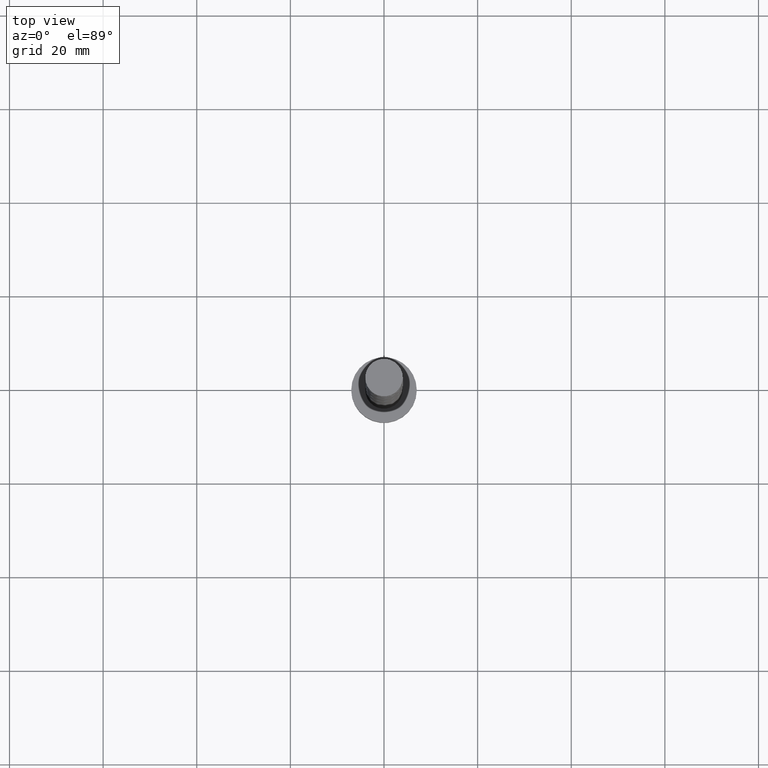
[diagram: clean part render]
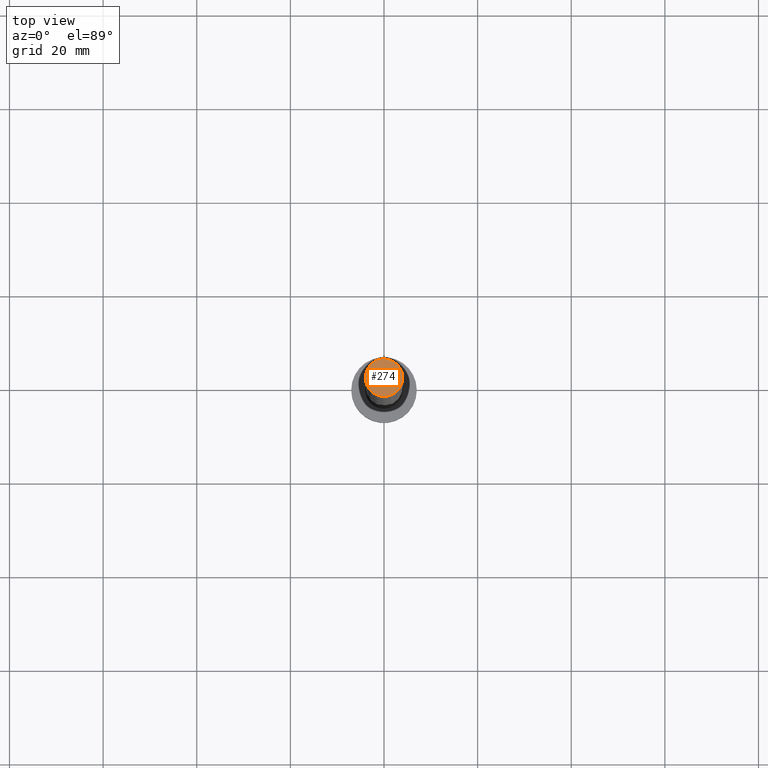
[diagram: same view with one face highlighted and labeled with its STEP entity id]
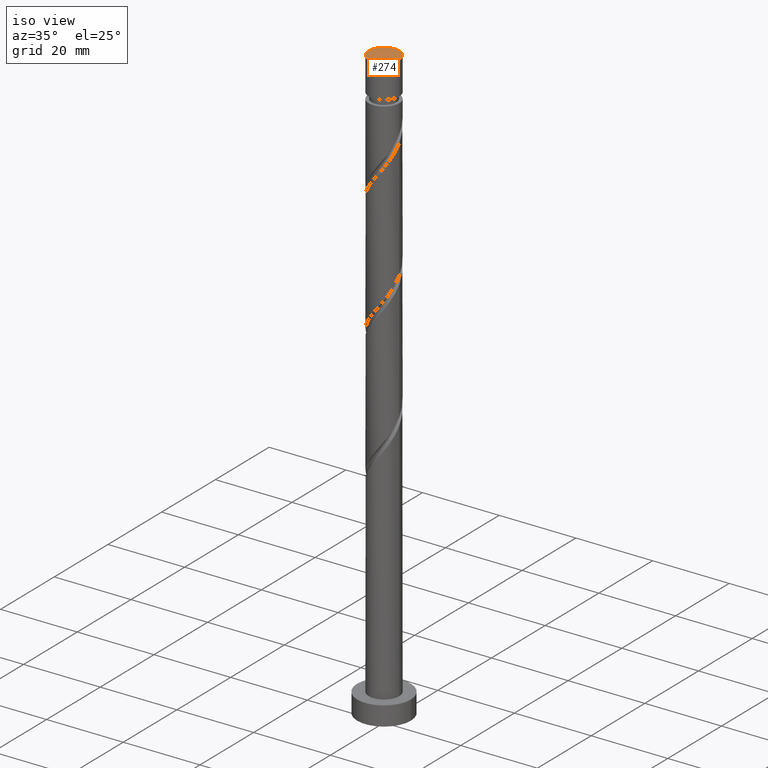
[diagram: same view with one face highlighted and labeled with its STEP entity id]
A machine part, top view. The second image highlights one B-rep face of the part: STEP entity #274.
A second angle (iso view) of the same face is appended — the face is thin or edge-on in the first view.
In plain terms, the highlighted planar face has unit normal (0, 0, 1).
Its self-contained STEP definition (entity closure, byte-faithful):
#145 = DIRECTION ( 'NONE',  ( 0.000000000000000000, 0.000000000000000000, 1.000000000000000000 ) ) ;
#274 = ADVANCED_FACE ( 'NONE', ( #655 ), #673, .T. ) ;
#280 = AXIS2_PLACEMENT_3D ( 'NONE', #1366, #145, #1201 ) ;
#421 = EDGE_CURVE ( 'NONE', #1029, #985, #783, .T. ) ;
#551 = EDGE_CURVE ( 'NONE', #985, #1029, #1008, .T. ) ;
#584 = CARTESIAN_POINT ( 'NONE',  ( 0.000000000000000000, 0.000000000000000000, 155.0000000000000000 ) ) ;
#655 = FACE_OUTER_BOUND ( 'NONE', #896, .T. ) ;
#673 = PLANE ( 'NONE',  #280 ) ;
#783 = CIRCLE ( 'NONE', #1244, 4.000000000000000000 ) ;
#854 = DIRECTION ( 'NONE',  ( 0.000000000000000000, 0.000000000000000000, 1.000000000000000000 ) ) ;
#896 = EDGE_LOOP ( 'NONE', ( #1152, #1015 ) ) ;
#985 = VERTEX_POINT ( 'NONE', #1192 ) ;
#990 = CARTESIAN_POINT ( 'NONE',  ( 0.000000000000000000, 0.000000000000000000, 155.0000000000000000 ) ) ;
#1008 = CIRCLE ( 'NONE', #1410, 4.000000000000000000 ) ;
#1015 = ORIENTED_EDGE ( 'NONE', *, *, #551, .T. ) ;
#1029 = VERTEX_POINT ( 'NONE', #1499 ) ;
#1152 = ORIENTED_EDGE ( 'NONE', *, *, #421, .T. ) ;
#1192 = CARTESIAN_POINT ( 'NONE',  ( 4.000000000000000000, 4.898587196589412829E-16, 155.0000000000000000 ) ) ;
#1201 = DIRECTION ( 'NONE',  ( 1.000000000000000000, 0.000000000000000000, -0.000000000000000000 ) ) ;
#1244 = AXIS2_PLACEMENT_3D ( 'NONE', #990, #854, #1542 ) ;
#1366 = CARTESIAN_POINT ( 'NONE',  ( 0.000000000000000000, 0.000000000000000000, 155.0000000000000000 ) ) ;
#1410 = AXIS2_PLACEMENT_3D ( 'NONE', #584, #1653, #1417 ) ;
#1417 = DIRECTION ( 'NONE',  ( 1.000000000000000000, 0.000000000000000000, 0.000000000000000000 ) ) ;
#1499 = CARTESIAN_POINT ( 'NONE',  ( -4.000000000000000000, 0.000000000000000000, 155.0000000000000000 ) ) ;
#1542 = DIRECTION ( 'NONE',  ( 1.000000000000000000, 0.000000000000000000, 0.000000000000000000 ) ) ;
#1653 = DIRECTION ( 'NONE',  ( 0.000000000000000000, 0.000000000000000000, 1.000000000000000000 ) ) ;